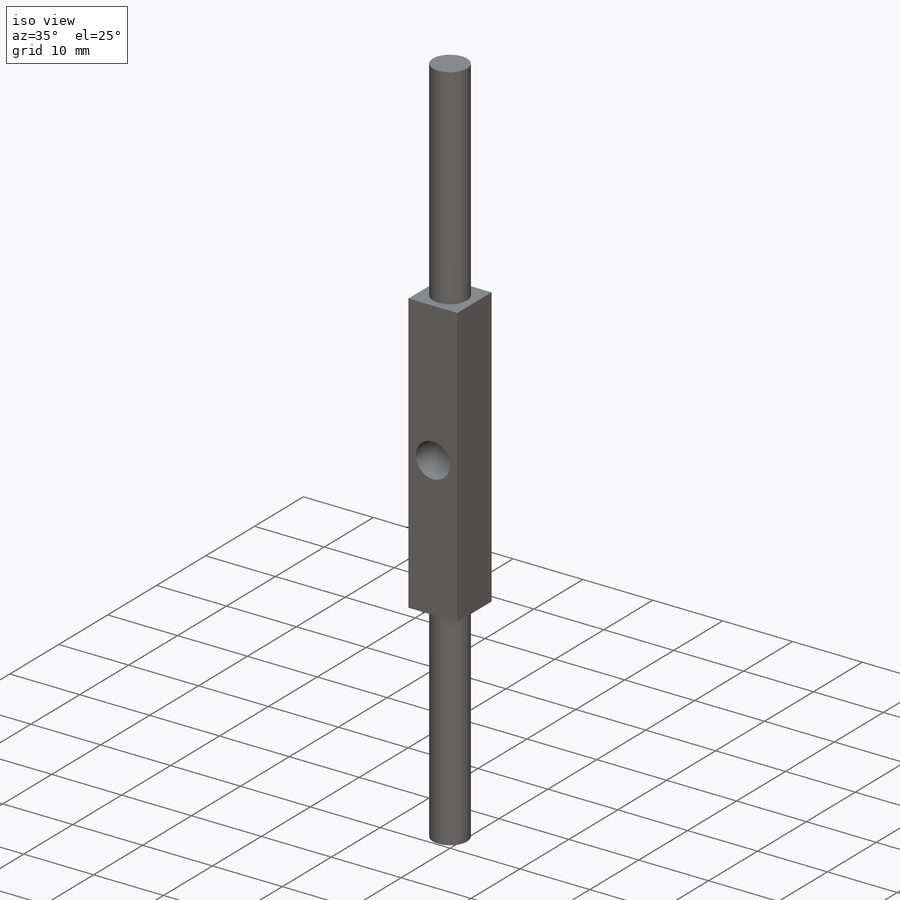
[diagram: iso view]
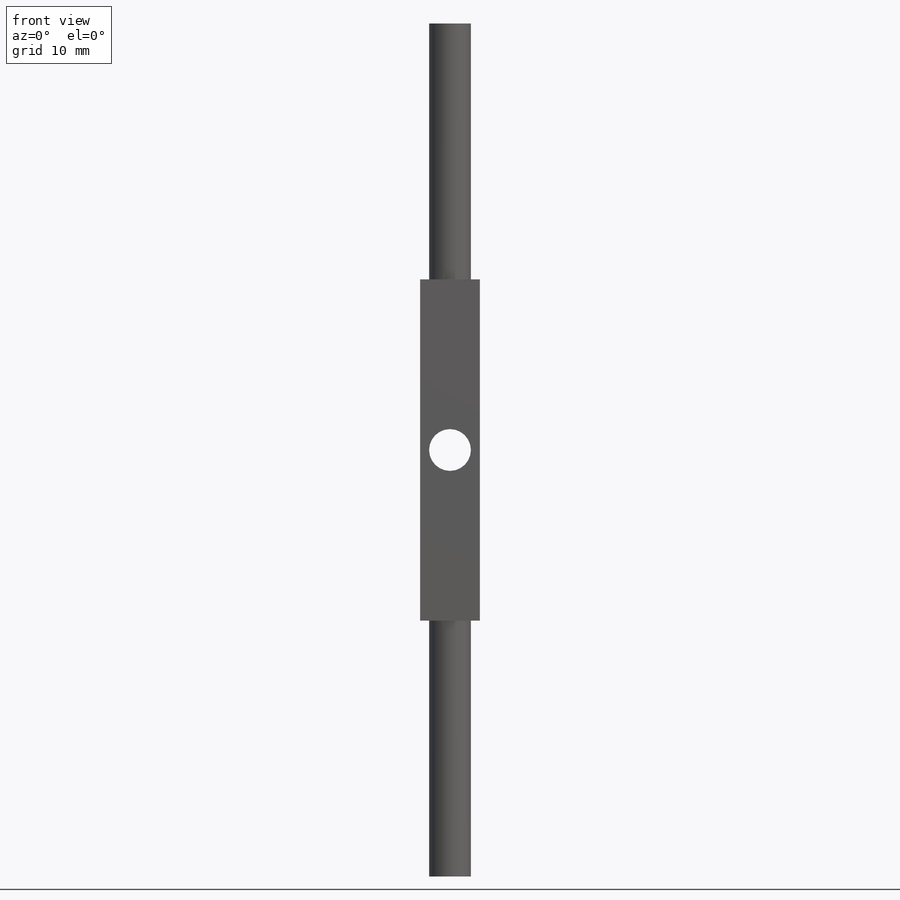
[diagram: front view]
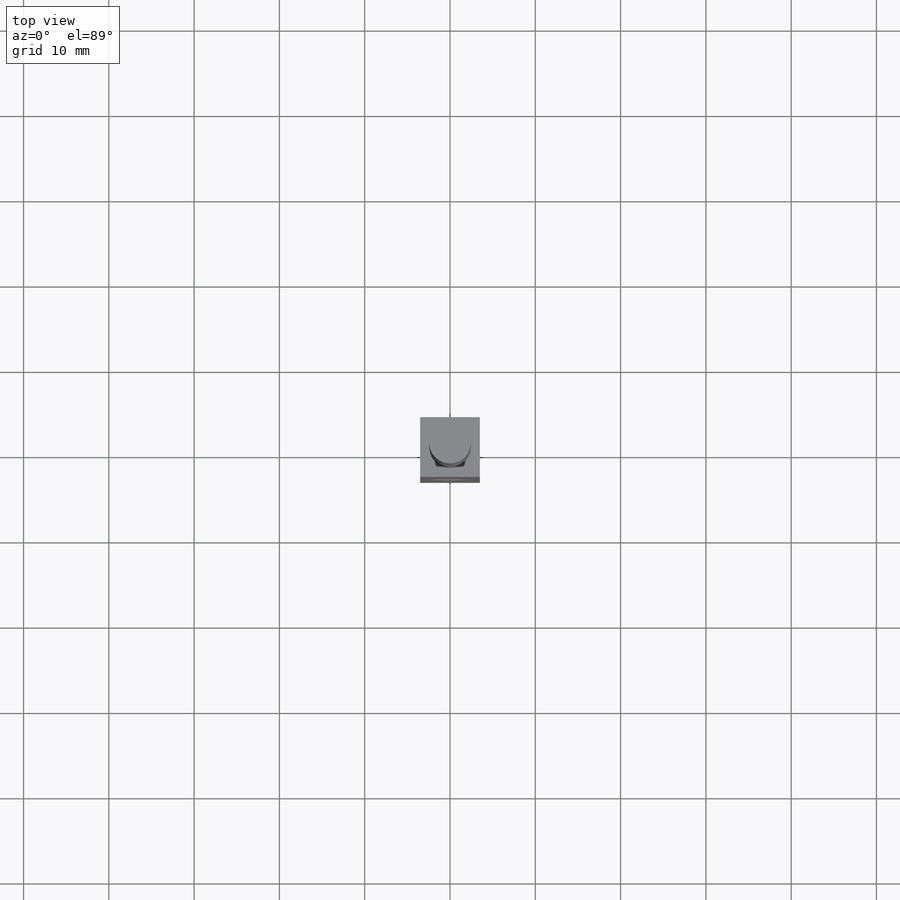
[diagram: top view]
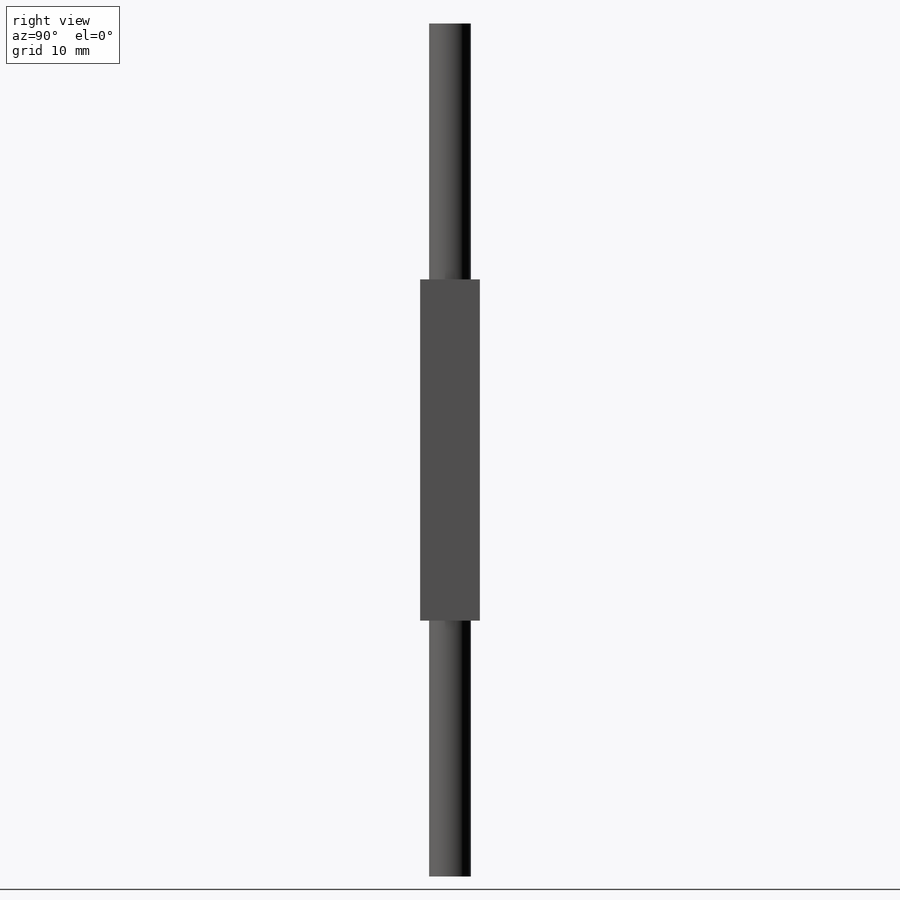
[diagram: right view]
SOLIDWORKS PART (.sldprt)
format: sldprt  version: not decoded by parser v0  size: 125,952 bytes
history: native  units: mm
features: sketch x8, extrude x4, material x1, cut_extrude x1, helix x1 (+11 scaffold rows collapsed)
feature tree (26):
  scaffold x11  (default folders/planes/origin — collapsed)
  material  "Material <not specified>"
  sketch  "Sketch1"  dims[D1=4.9mm]
  extrude  "Boss-Extrude1"  Depth=50mm
  extrude  "Boss-Extrude2"  [1 undecoded]
  sketch  "Sketch1<2>"  dims[D1=50.0mm]
  sketch  "Sketch2"  dims[c1.D1=~7.041958mm c1.D2=~7.798294mm c2.D1=~1.783306mm c2.D2=~4.748629mm c3.D1=7.0mm c3.D2=7.0mm]
  extrude  "Boss-Extrude3"  Depth=20mm
  extrude  "Boss-Extrude4"  [1 undecoded]
  sketch  "Sketch2<2>"  dims[D1=20.0mm]
  sketch  "Sketch3"  dims[D1=4.9mm]
  cut_extrude  "Cut-Extrude1"  [1 undecoded]
  sketch  "Sketch4"  dims[c1.D1=0.8mm c1.D2=0.45mm c1.D3=0.8mm c2.D3=~8.055876deg c2.D4=0.45mm c2.D1=~0.544551mm c2.D2=~0.350418mm c3.D1=0.8mm c3.D2=0.49mm c3.D3=~0.297446mm c3.D4=0.98mm c4.D3=0.45mm c4.D2=~0.520312mm]
  sketch  "Sketch7"  dims[D1=4.9mm]
  helix  "Helix/Spiral1"  Pitch=7mm
  sketch  "Sketch9"  dims[D1=~5.970587mm]
decode coverage: 11 of 14 modeling features carry decoded parameters
note: ~ marks probable driven/reference dimensions
note: 3 parameter values undecoded
summary: no parameter record found for 3 features
note: suppression state not decoded; provenance and decode notes live in map.json
